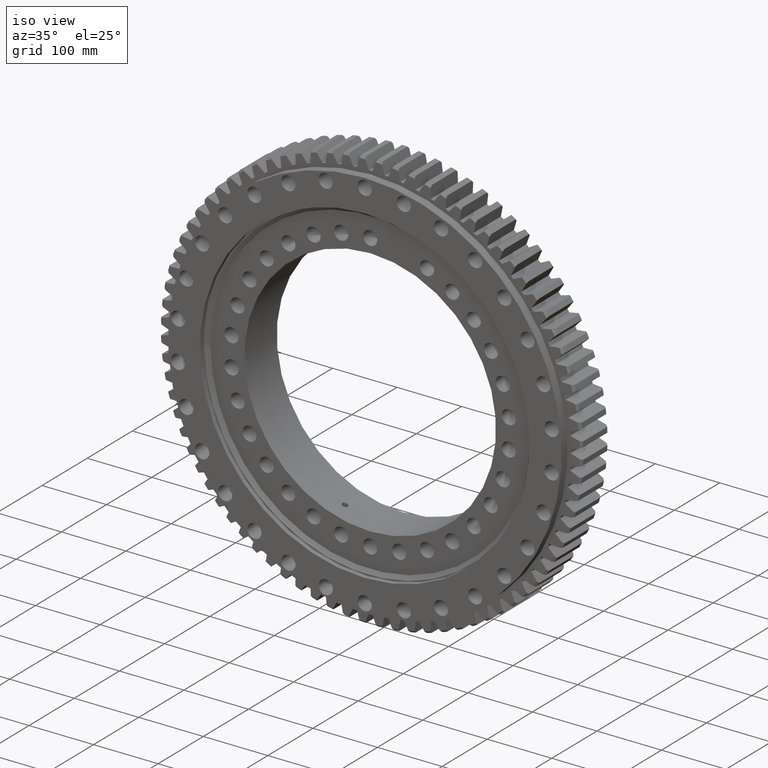
[diagram: clean part render]
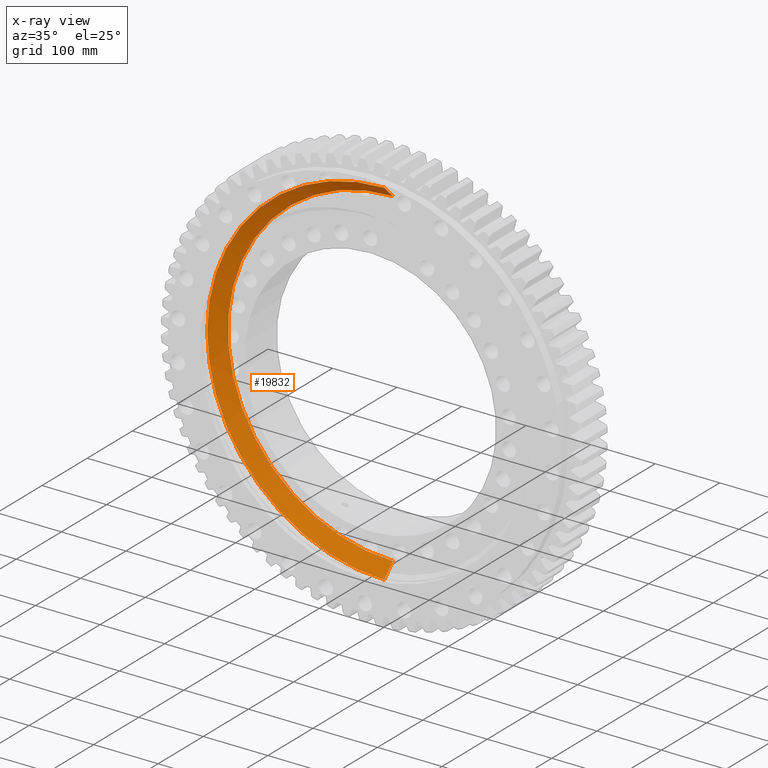
[diagram: x-ray — body ghosted, one internal face saturated and labeled with its STEP entity id]
A machine part, iso view, then the same camera in x-ray: the body is ghosted and one INTERNAL B-rep face — a face not visible from any outside direction — is saturated and labeled: STEP entity #19832.
In plain terms, the highlighted conical surface has half-angle 45 deg.
Its self-contained STEP definition (entity closure, byte-faithful):
#697 = CARTESIAN_POINT ( 'NONE',  ( 0.0000000000000000000, 19.71320343559639100, -255.4999999999999400 ) ) ;
#899 = DIRECTION ( 'NONE',  ( 0.0000000000000000000, -1.000000000000000000, 0.0000000000000000000 ) ) ;
#3554 = LINE ( 'NONE', #21623, #18277 ) ;
#4208 = CARTESIAN_POINT ( 'NONE',  ( 3.361730126142569500E-014, 0.7071067811866005300, -274.5060966544097600 ) ) ;
#4968 = CARTESIAN_POINT ( 'NONE',  ( 3.245351348982027900E-014, 19.71320343559639100, 255.4999999999999400 ) ) ;
#5533 = AXIS2_PLACEMENT_3D ( 'NONE', #9860, #22720, #11714 ) ;
#6326 = EDGE_CURVE ( 'NONE', #8840, #9090, #3554, .T. ) ;
#6787 = EDGE_LOOP ( 'NONE', ( #19046, #8810, #22929, #12198 ) ) ;
#8764 = DIRECTION ( 'NONE',  ( 8.659560562354942700E-017, -0.7071067811865468000, 0.7071067811865483500 ) ) ;
#8810 = ORIENTED_EDGE ( 'NONE', *, *, #6326, .T. ) ;
#8840 = VERTEX_POINT ( 'NONE', #4968 ) ;
#9090 = VERTEX_POINT ( 'NONE', #18610 ) ;
#9798 = VECTOR ( 'NONE', #11678, 999.9999999999998900 ) ;
#9860 = CARTESIAN_POINT ( 'NONE',  ( 0.0000000000000000000, 19.71320343559639100, 0.0000000000000000000 ) ) ;
#10005 = CARTESIAN_POINT ( 'NONE',  ( 0.0000000000000000000, 19.71320343559639100, 0.0000000000000000000 ) ) ;
#10419 = DIRECTION ( 'NONE',  ( -0.0000000000000000000, 1.000000000000000000, -0.0000000000000000000 ) ) ;
#11467 = VERTEX_POINT ( 'NONE', #4208 ) ;
#11678 = DIRECTION ( 'NONE',  ( 0.0000000000000000000, -0.7071067811865468000, -0.7071067811865483500 ) ) ;
#11691 = AXIS2_PLACEMENT_3D ( 'NONE', #10005, #899, #19192 ) ;
#11714 = DIRECTION ( 'NONE',  ( 0.0000000000000000000, 0.0000000000000000000, 1.000000000000000000 ) ) ;
#11975 = VERTEX_POINT ( 'NONE', #13148 ) ;
#12198 = ORIENTED_EDGE ( 'NONE', *, *, #14831, .F. ) ;
#12689 = EDGE_CURVE ( 'NONE', #11467, #9090, #16077, .T. ) ;
#13148 = CARTESIAN_POINT ( 'NONE',  ( 0.0000000000000000000, 19.71320343559639100, -255.4999999999999400 ) ) ;
#14699 = LINE ( 'NONE', #697, #9798 ) ;
#14831 = EDGE_CURVE ( 'NONE', #11975, #11467, #14699, .T. ) ;
#15919 = CONICAL_SURFACE ( 'NONE', #11691, 255.4999999999999400, 0.7853981633974492800 ) ;
#16077 = CIRCLE ( 'NONE', #16649, 274.5060966544097600 ) ;
#16649 = AXIS2_PLACEMENT_3D ( 'NONE', #21433, #10419, #23274 ) ;
#17082 = FACE_OUTER_BOUND ( 'NONE', #6787, .T. ) ;
#17664 = CIRCLE ( 'NONE', #5533, 255.4999999999999400 ) ;
#18277 = VECTOR ( 'NONE', #8764, 999.9999999999998900 ) ;
#18610 = CARTESIAN_POINT ( 'NONE',  ( 0.0000000000000000000, 0.7071067811866005300, 274.5060966544097600 ) ) ;
#19046 = ORIENTED_EDGE ( 'NONE', *, *, #19751, .T. ) ;
#19192 = DIRECTION ( 'NONE',  ( 0.0000000000000000000, 0.0000000000000000000, -1.000000000000000000 ) ) ;
#19751 = EDGE_CURVE ( 'NONE', #11975, #8840, #17664, .T. ) ;
#19832 = ADVANCED_FACE ( 'NONE', ( #17082 ), #15919, .F. ) ;
#21433 = CARTESIAN_POINT ( 'NONE',  ( 0.0000000000000000000, 0.7071067811866005300, 0.0000000000000000000 ) ) ;
#21623 = CARTESIAN_POINT ( 'NONE',  ( 3.128972571821486800E-014, 19.71320343559639100, 255.4999999999999400 ) ) ;
#22720 = DIRECTION ( 'NONE',  ( -0.0000000000000000000, 1.000000000000000000, -0.0000000000000000000 ) ) ;
#22929 = ORIENTED_EDGE ( 'NONE', *, *, #12689, .F. ) ;
#23274 = DIRECTION ( 'NONE',  ( 0.0000000000000000000, 0.0000000000000000000, 1.000000000000000000 ) ) ;